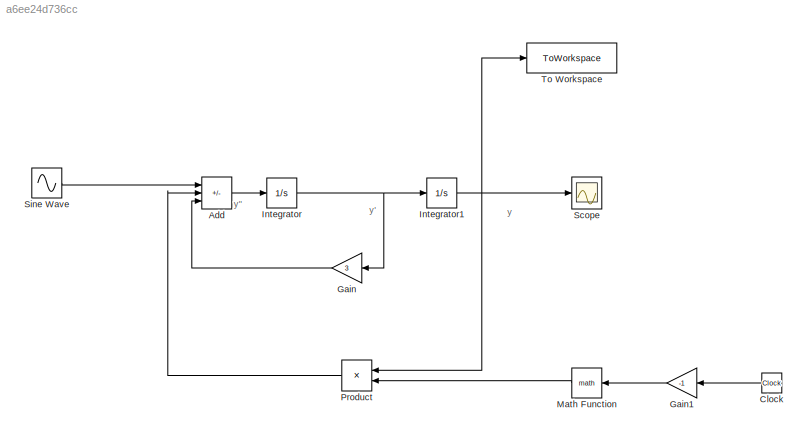
MODEL slx_a6ee24d736cc
KIND model
CONFIG AbsTol = auto
CONFIG EnableMultiTasking = off
CONFIG FixedStep = auto
CONFIG MaxStep = auto
CONFIG MinStep = auto
CONFIG RelTol = 1e-3
CONFIG SampleTimeConstraint = Unconstrained
CONFIG SolverName = VariableStepAuto
CONFIG StartTime = 0.0
CONFIG StopTime = 100
BLOCK [Sum] Add
  IconShape = rectangular
  Inputs = +--
BLOCK [Clock] Clock
  Decimation = 1
  NameLocation = top
BLOCK [Gain] Gain
  Gain = 3
  NameLocation = top
BLOCK [Gain] Gain1
  Gain = -1
  NameLocation = top
BLOCK [Integrator] Integrator
BLOCK [Integrator] Integrator1
BLOCK [Math] Math Function
  NameLocation = top
BLOCK [Product] Product
  NameLocation = top
BLOCK [Scope] Scope
  Floating = off
  NumInputPorts = 1
  ScopeSpecificationString = Simulink.scopes.TimeScopeBlockCfg('CurrentConfiguration', extmgr.ConfigurationSet(extmgr.Configuration('Core','General UI',true),extmgr.Configuration('Core','Source UI',true),extmgr.Configuration('Sources','WiredSimulink',true),extmgr.Configuration('Visuals','Time Domain',true,'SerializedDisplays',{struct('MinYLimReal','-0.09391','MaxYLimReal','0.84517','YLabelReal','','MinYLimMag','0.00000','MaxY...<+1447ch>
BLOCK [Sin] Sine Wave
  Amplitude = 8
  Frequency = 5
  SampleTime = 0
BLOCK [ToWorkspace] To Workspace
  FixptAsFi = on
  MaxDataPoints = inf
  SampleTime = -1
  VariableName = simout
ANNOTATION (root): y
ANNOTATION (root): y"
ANNOTATION (root): y'
LINE Add:1 -> Integrator:1
LINE Clock:1 -> Gain1:1
LINE Gain1:1 -> Math Function:1
LINE Gain:1 -> Add:3
NET Integrator1:1 -> Product:1, Scope:1, To Workspace:1
NET Integrator:1 -> Gain:1, Integrator1:1
LINE Math Function:1 -> Product:2
LINE Product:1 -> Add:2
LINE Sine Wave:1 -> Add:1
note: NET lines group one-source signal fan-out (src -> all destinations, sorted); 1:1 wires keep LINE
